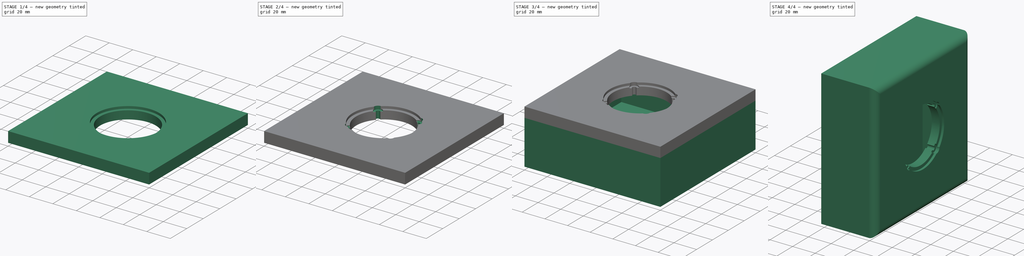
[diagram: build sequence overview — one tinted view per stage of 4, left to right]
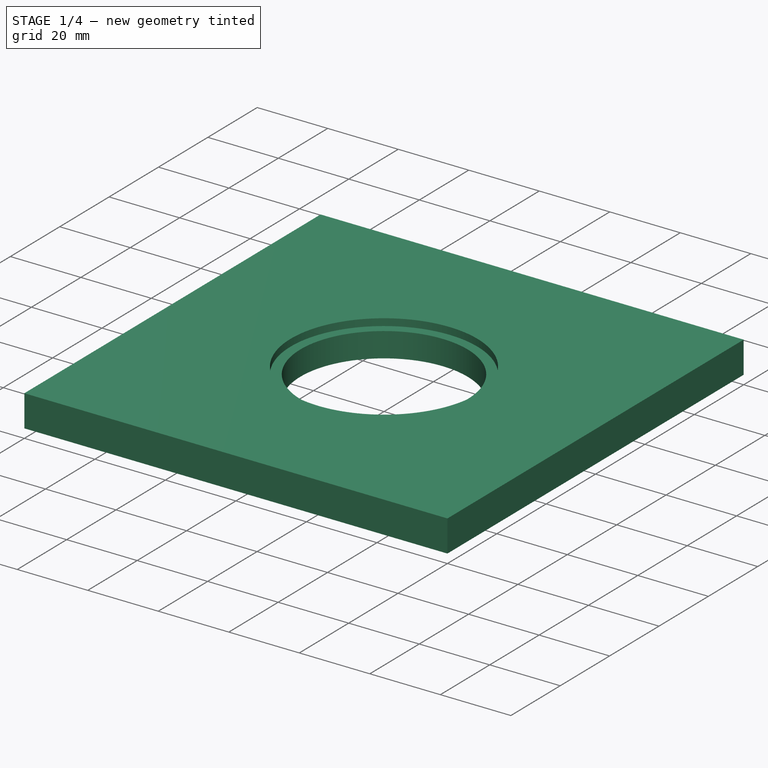
[diagram: stage 1 of 4 — iso view after this stage's code; geometry added in this stage tinted green]
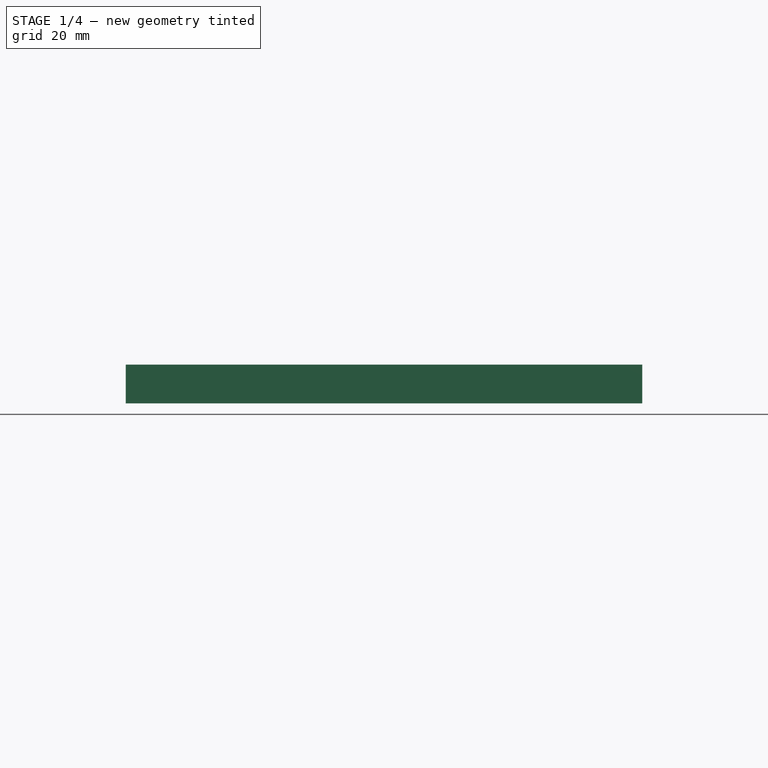
[diagram: stage 1 of 4 — front view after this stage's code; geometry added in this stage tinted green]
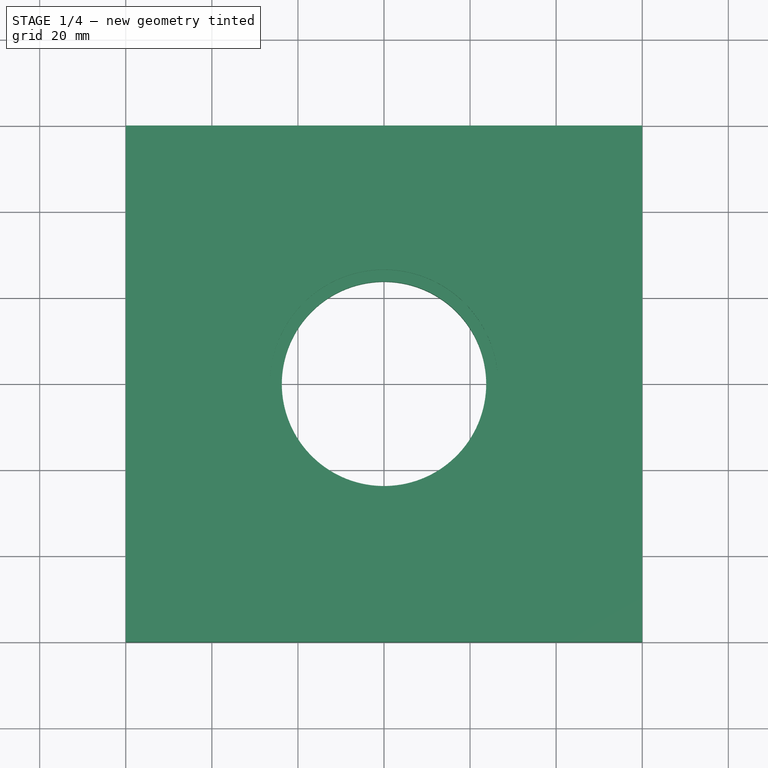
[diagram: stage 1 of 4 — top view after this stage's code; geometry added in this stage tinted green]
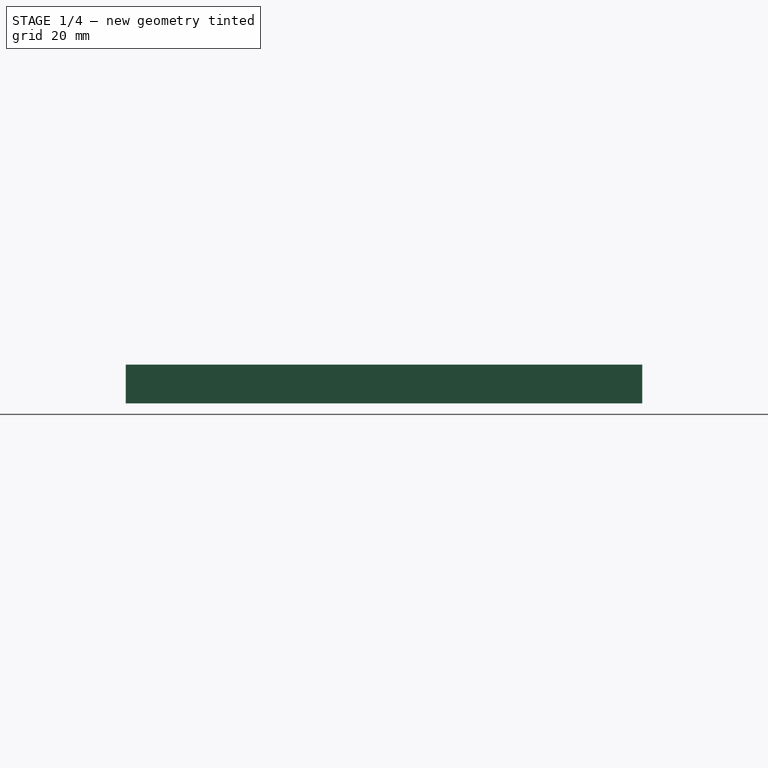
[diagram: stage 1 of 4 — right view after this stage's code; geometry added in this stage tinted green]
FCSTD DOCUMENT  (FreeCAD 0.21R33771 (Git))
Label: baffle3 - testpart
License: All rights reserved
LicenseURL: http://en.wikipedia.org/wiki/All_rights_reserved
objects: Sketcher::SketchObject×5, PartDesign::Pad×3, PartDesign::Hole×3, PartDesign::PolarPattern×2, PartDesign::AdditiveCylinder×1, PartDesign::Fillet×1, PartDesign::SubtractiveCylinder×1, PartDesign::Body×1
note: 26 computed .brp shape members not serialized (recipe doc carries the construction recipe); baked Part::Feature solids carry a one-line shape summary decoded from their .brp

FEATURE [Sketcher::SketchObject] Sketch  label="front panel outline"
  FullyConstrained = true
  MapMode = 5
  Placement = pos=(0,0,0) rot=(0,1,0;3.14159rad)
  Support = -> [XY_Plane]
  sketch-geometry (4):
    g0: LineSegment StartX=-60 StartY=120 StartZ=0 EndX=60 EndY=120 EndZ=0
    g1: LineSegment StartX=60 StartY=120 StartZ=0 EndX=60 EndY=0 EndZ=0
    g2: LineSegment StartX=60 StartY=0 StartZ=0 EndX=-60 EndY=0 EndZ=0
    g3: LineSegment StartX=-60 StartY=0 StartZ=0 EndX=-60 EndY=120 EndZ=0
  constraints (11):
    c: Coincident(g0,g1)
    c: Coincident(g1,g2)
    c: Coincident(g2,g3)
    c: Coincident(g3,g0)
    c: Horizontal(g0)
    c: Horizontal(g2)
    c: Vertical(g1)
    c: Vertical(g3)
    c: DistanceY(g3,g3) = 120
    c: DistanceX(g2,g2) = 120
    c: Symmetric(g2,g1,g-1)
FEATURE [PartDesign::Pad] Pad  label="front panel pad"
  Direction = (0,0,-1)
  Length = 9
  Length2 = 10
  Profile = -> Sketch
  ReferenceAxis = -> Sketch [N_Axis]
  Type = 0
FEATURE [Sketcher::SketchObject] Sketch003  label="bmr centre"
  AttachmentOffset = pos=(0,60,0) rot=(0,0,1;0rad)
  FullyConstrained = true
  MapMode = 5
  Placement = pos=(0,60,0) rot=(0,0,1;0rad)
  Support = -> [XY_Plane]
  sketch-geometry (1):
    g0: Circle CenterX=0 CenterY=0 CenterZ=0 NormalX=0 NormalY=0 NormalZ=1 AngleXU=0 Radius=20.75
  constraints (2):
    c: Coincident(g-1,g0)
    c: Diameter(g0) = 41.5
FEATURE [PartDesign::Hole] Hole002  label="bmr rebated hole"
  BaseFeature = -> Pad
  CustomThreadClearance = 0
  Depth = 25
  DepthType = 0
  Diameter = 47.5
  DrillForDepth = false
  DrillPoint = 1
  DrillPointAngle = 118
  HoleCutCountersinkAngle = 90
  HoleCutCustomValues = false
  HoleCutDepth = 2
  HoleCutDiameter = 53
  HoleCutType = 1
  ModelThread = false
  Profile = -> Sketch003
  Tapered = false
  TaperedAngle = 90
  ThreadClass = 0
  ThreadDepth = 25
  ThreadDepthType = 0
  ThreadDirection = 0
  ThreadFit = 0
  ThreadSize = 0
  ThreadType = 0
  Threaded = false
  UseCustomThreadClearance = false
FEATURE [Sketcher::SketchObject] Sketch004  label="bmr posts"
  AttachmentOffset = pos=(0,60,0) rot=(0,0,1;0rad)
  FullyConstrained = true
  MapMode = 5
  Placement = pos=(0,60,0) rot=(0,0,1;0rad)
  Support = -> [XY_Plane]
  sketch-geometry (1):
    g0: Circle CenterX=17 CenterY=17 CenterZ=0 NormalX=0 NormalY=0 NormalZ=1 AngleXU=0 Radius=6
  constraints (3):
    c: Diameter(g0) = 12
    c: DistanceX(g-1,g0) = 17
    c: DistanceY(g-1,g0) = 17
FEATURE [PartDesign::AdditiveCylinder] Cylinder  label="bmr support pillar"
  Angle = 360
  AttacherType = Attacher::AttachEngine3D
  AttachmentOffset = pos=(0,0,39) rot=(0,0,1;0rad)
  BaseFeature = -> Hole002
  FirstAngle = 0
  Height = 39
  MapMode = 11
  Placement = pos=(17,77,39) rot=(0,0,1;1.5708rad)
  Radius = 3.5
  SecondAngle = 0
  Support = -> [Sketch004]
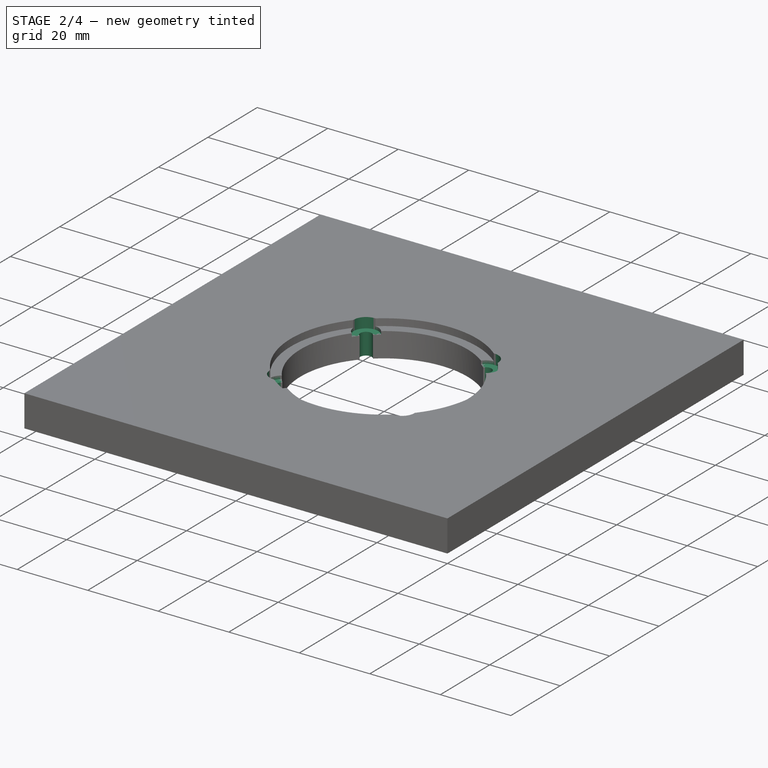
[diagram: stage 2 of 4 — iso view after this stage's code; geometry added in this stage tinted green]
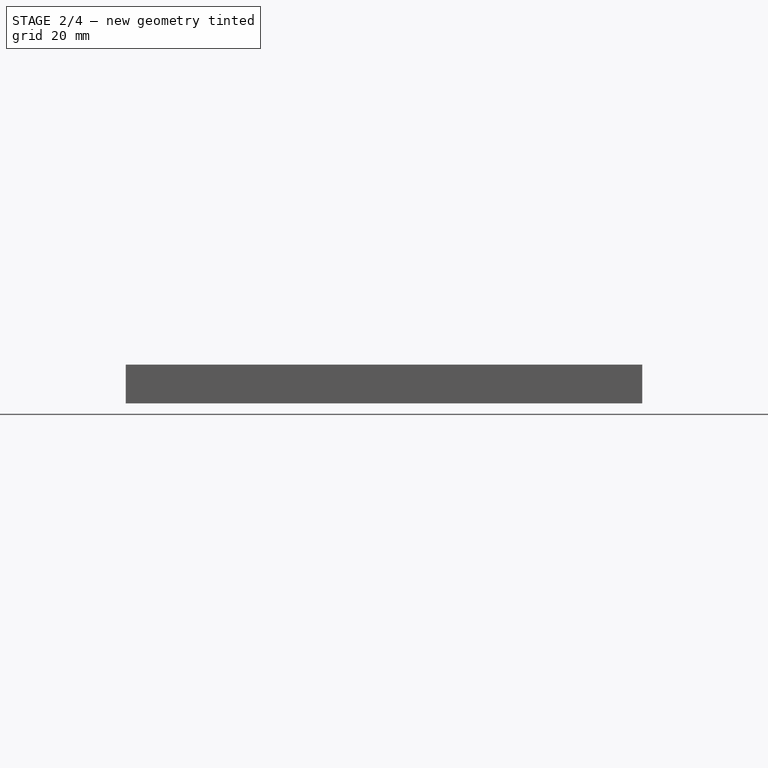
[diagram: stage 2 of 4 — front view after this stage's code; geometry added in this stage tinted green]
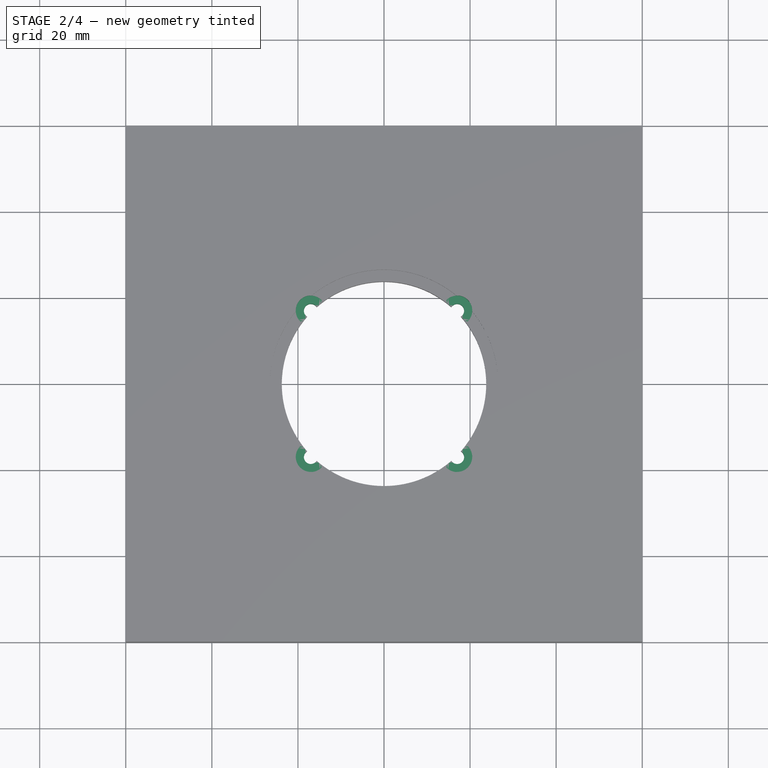
[diagram: stage 2 of 4 — top view after this stage's code; geometry added in this stage tinted green]
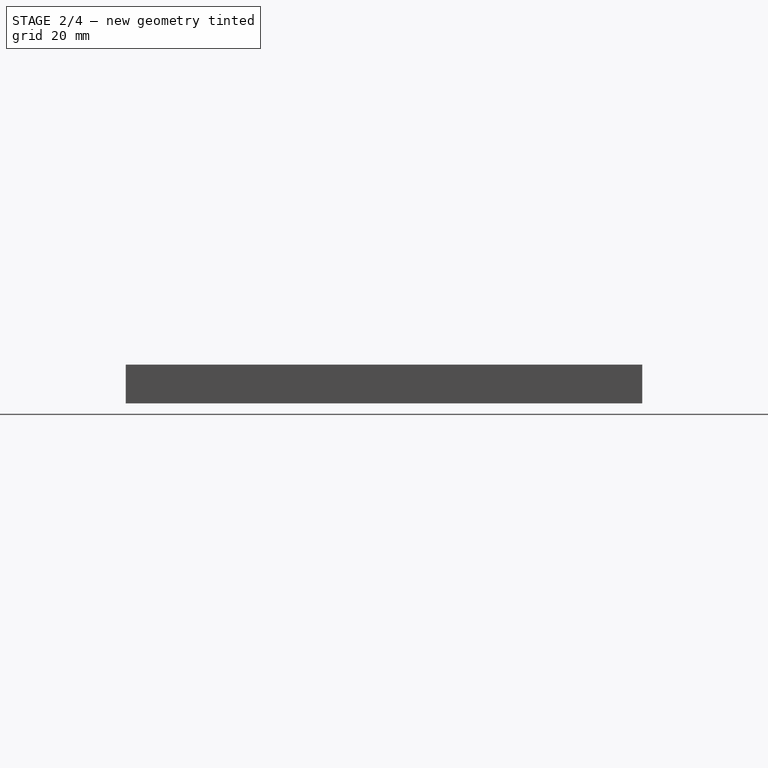
[diagram: stage 2 of 4 — right view after this stage's code; geometry added in this stage tinted green]
FEATURE [PartDesign::Hole] Hole003  label="bmr insert hole"
  BaseFeature = -> Cylinder
  CustomThreadClearance = 0
  Depth = 350.858
  DepthType = 1
  Diameter = 3.23
  DrillForDepth = false
  DrillPoint = 1
  DrillPointAngle = 118
  HoleCutCountersinkAngle = 90
  HoleCutCustomValues = false
  HoleCutDepth = 2.91
  HoleCutDiameter = 7
  HoleCutType = 1
  ModelThread = false
  Placement = pos=(17,77,39) rot=(0,0,1;1.5708rad)
  Profile = -> Sketch004
  Tapered = false
  TaperedAngle = 90
  ThreadClass = 0
  ThreadDepth = 350.858
  ThreadDepthType = 0
  ThreadDirection = 0
  ThreadFit = 0
  ThreadSize = 0
  ThreadType = 0
  Threaded = false
  UseCustomThreadClearance = false
FEATURE [PartDesign::PolarPattern] PolarPattern001  label="bmr support pillar pattern"
  Angle = 360
  Axis = -> Hole003 [Edge20]
  BaseFeature = -> Hole003
  Occurrences = 4
  Originals = -> [Cylinder]
  Placement = pos=(17,77,39) rot=(0,0,1;1.5708rad)
FEATURE [PartDesign::PolarPattern] PolarPattern002  label="bmr insert hole pattern"
  Angle = 360
  Axis = -> Sketch004 [N_Axis]
  BaseFeature = -> PolarPattern001
  Occurrences = 4
  Originals = -> [Hole003]
  Placement = pos=(17,77,39) rot=(0,0,1;1.5708rad)
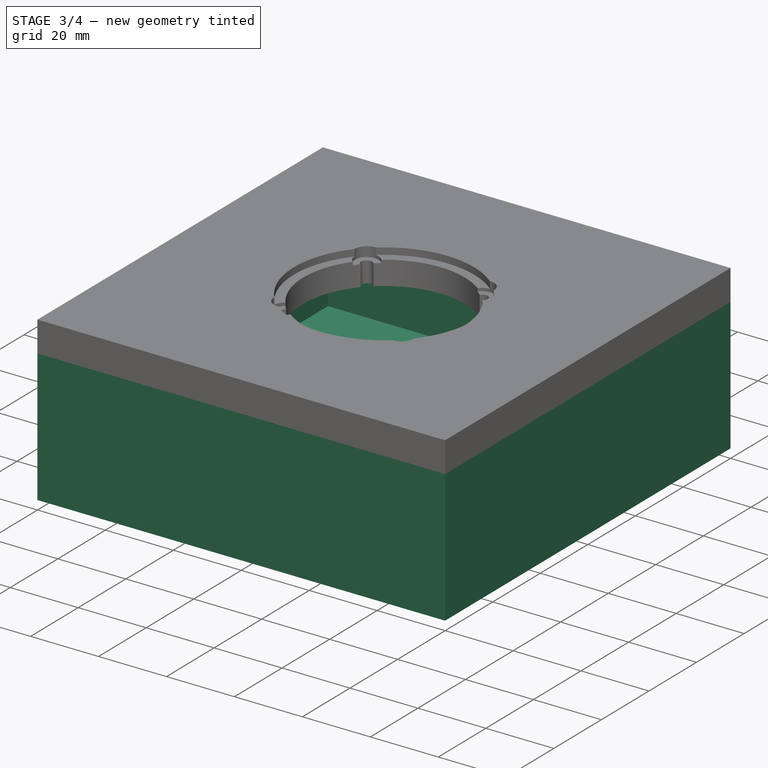
[diagram: stage 3 of 4 — iso view after this stage's code; geometry added in this stage tinted green]
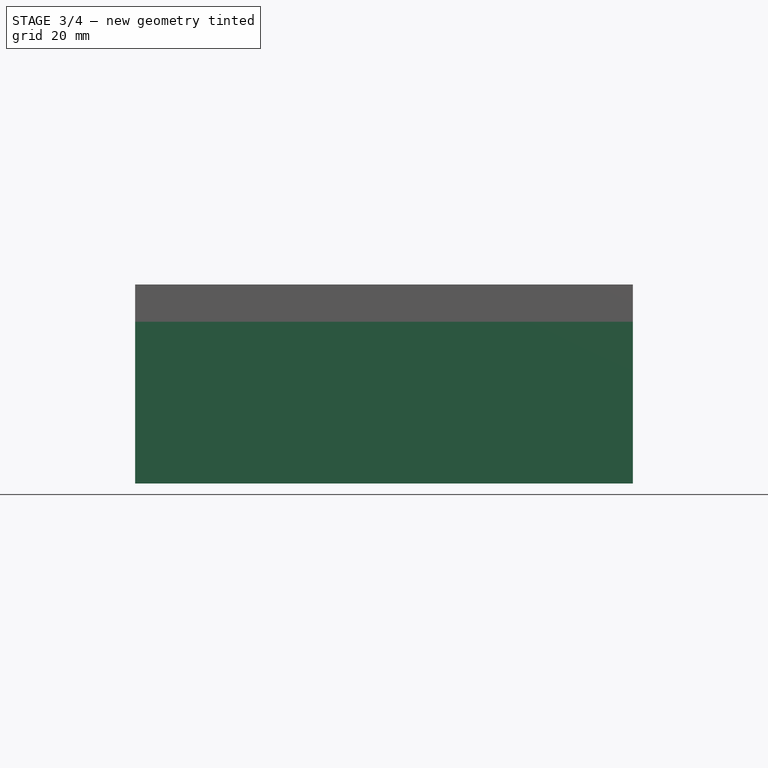
[diagram: stage 3 of 4 — front view after this stage's code; geometry added in this stage tinted green]
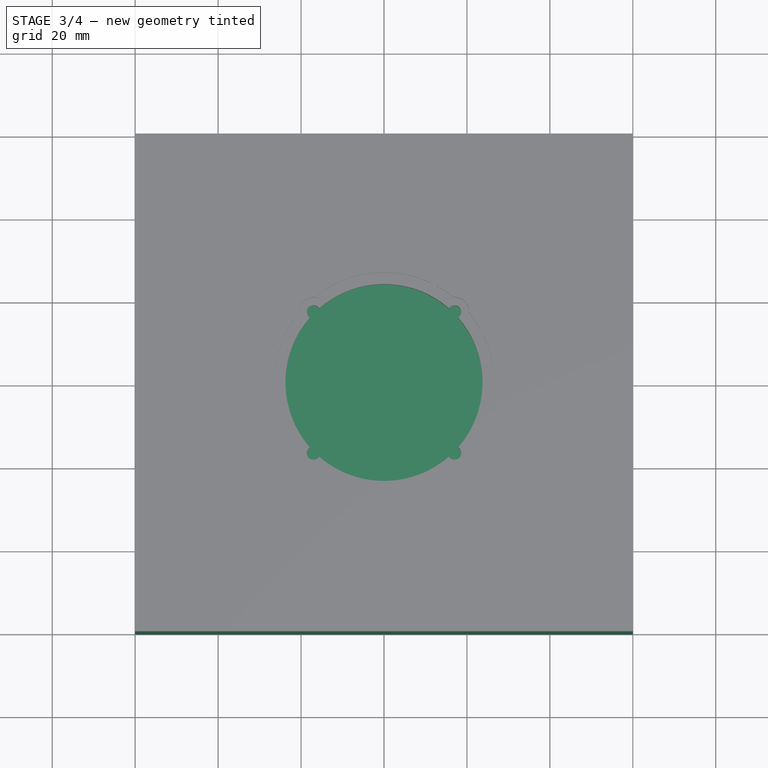
[diagram: stage 3 of 4 — top view after this stage's code; geometry added in this stage tinted green]
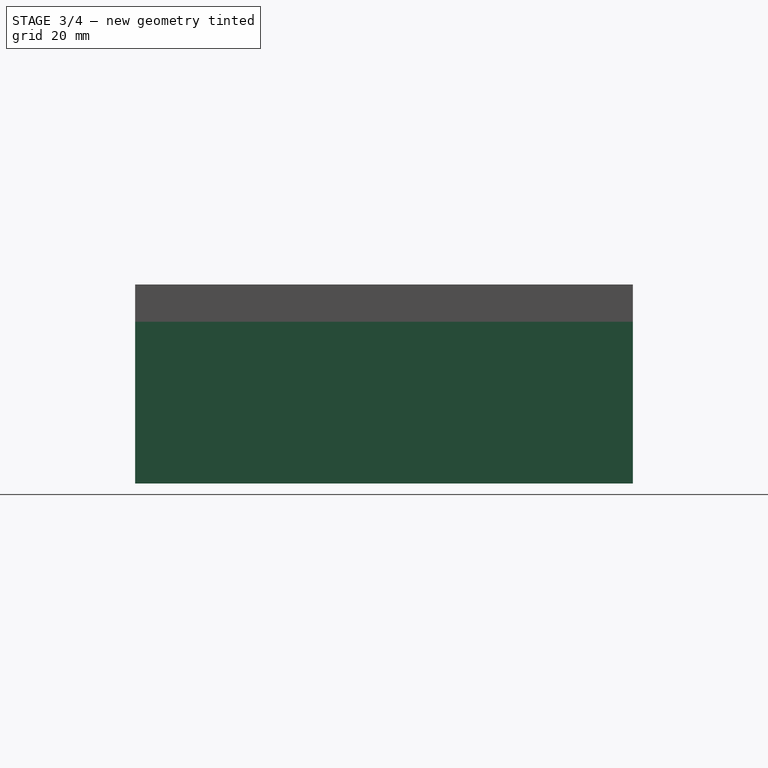
[diagram: stage 3 of 4 — right view after this stage's code; geometry added in this stage tinted green]
FEATURE [Sketcher::SketchObject] Sketch005  label="external walls"
  AttachmentOffset = pos=(0,0,9) rot=(0,0,1;0rad)
  FullyConstrained = true
  MapMode = 5
  Placement = pos=(0,0,-9) rot=(0,1,0;3.14159rad)
  Support = -> [XY_Plane]
  sketch-geometry (8):
    g0: LineSegment StartX=-60 StartY=120 StartZ=0 EndX=60 EndY=120 EndZ=0
    g1: LineSegment StartX=60 StartY=120 StartZ=0 EndX=60 EndY=0 EndZ=0
    g2: LineSegment StartX=60 StartY=0 StartZ=0 EndX=-60 EndY=0 EndZ=0
    g3: LineSegment StartX=-60 StartY=0 StartZ=0 EndX=-60 EndY=120 EndZ=0
    g4: LineSegment StartX=-55 StartY=115 StartZ=0 EndX=55 EndY=115 EndZ=0
    g5: LineSegment StartX=55 StartY=115 StartZ=0 EndX=55 EndY=5 EndZ=0
    g6: LineSegment StartX=55 StartY=5 StartZ=0 EndX=-55 EndY=5 EndZ=0
    g7: LineSegment StartX=-55 StartY=5 StartZ=0 EndX=-55 EndY=115 EndZ=0
  constraints (23):
    c: Coincident(g0,g1)
    c: Coincident(g1,g2)
    c: Coincident(g2,g3)
    c: Coincident(g3,g0)
    c: Horizontal(g0)
    c: Horizontal(g2)
    c: Vertical(g1)
    c: Vertical(g3)
    c: DistanceY(g3,g3) = 120
    c: DistanceX(g2,g2) = 120
    c: Symmetric(g2,g1,g-1)
    c: Coincident(g4,g5)
    c: Coincident(g5,g6)
    c: Coincident(g6,g7)
    c: Coincident(g7,g4)
    c: Horizontal(g4)
    c: Horizontal(g6)
    c: Vertical(g5)
    c: Vertical(g7)
    c: DistanceY(g7,g7) = 110
    c: DistanceX(g4,g4) = 110
    c: Symmetric(g4,g4,g-2)
    c: Distance(g6,g2) = 5
FEATURE [PartDesign::Pad] Pad001  label="external walls pad"
  BaseFeature = -> PolarPattern002
  Direction = (0,0,-1)
  Length = 30
  Length2 = 10
  Placement = pos=(17,77,39) rot=(0,0,1;1.5708rad)
  Profile = -> Sketch005
  ReferenceAxis = -> Sketch005 [N_Axis]
  Type = 0
FEATURE [Sketcher::SketchObject] Sketch008  label="back panel outline"
  AttachmentOffset = pos=(0,0,39) rot=(0,0,1;0rad)
  FullyConstrained = true
  MapMode = 5
  Placement = pos=(0,0,-39) rot=(0,1,0;3.14159rad)
  Support = -> [XY_Plane]
  sketch-geometry (4):
    g0: LineSegment StartX=-60 StartY=120 StartZ=0 EndX=60 EndY=120 EndZ=0
    g1: LineSegment StartX=60 StartY=120 StartZ=0 EndX=60 EndY=0 EndZ=0
    g2: LineSegment StartX=60 StartY=0 StartZ=0 EndX=-60 EndY=0 EndZ=0
    g3: LineSegment StartX=-60 StartY=0 StartZ=0 EndX=-60 EndY=120 EndZ=0
  constraints (11):
    c: Coincident(g0,g1)
    c: Coincident(g1,g2)
    c: Coincident(g2,g3)
    c: Coincident(g3,g0)
    c: Horizontal(g0)
    c: Horizontal(g2)
    c: Vertical(g1)
    c: Vertical(g3)
    c: DistanceY(g3,g3) = 120
    c: DistanceX(g2,g2) = 120
    c: Symmetric(g2,g1,g-1)
FEATURE [PartDesign::Pad] Pad002
  BaseFeature = -> Pad001
  Direction = (0,0,-1)
  Length = 9
  Length2 = 10
  Placement = pos=(17,77,39) rot=(0,0,1;1.5708rad)
  Profile = -> Sketch008
  ReferenceAxis = -> Sketch008 [N_Axis]
  Type = 0
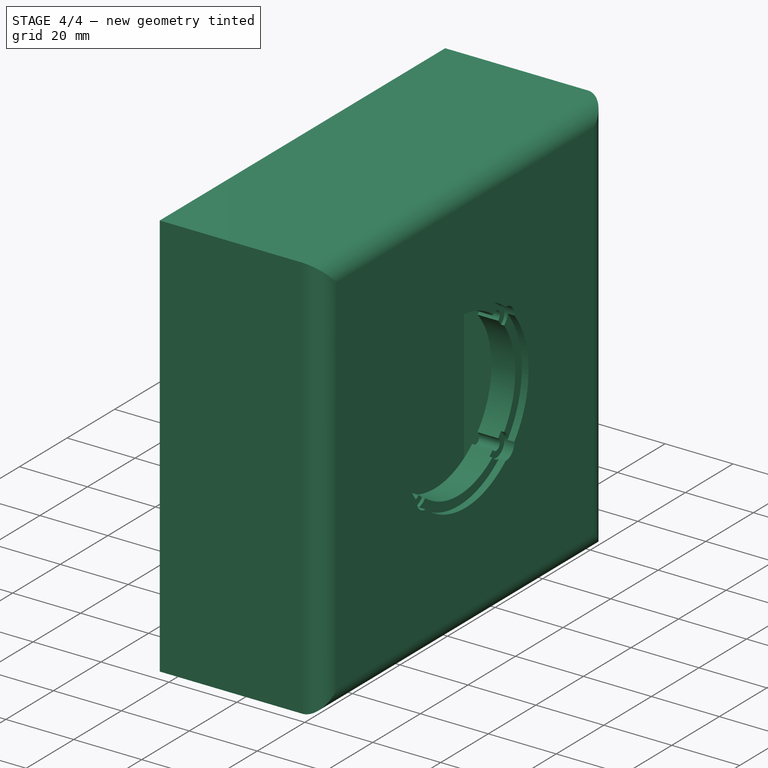
[diagram: stage 4 of 4 — iso view after this stage's code; geometry added in this stage tinted green]
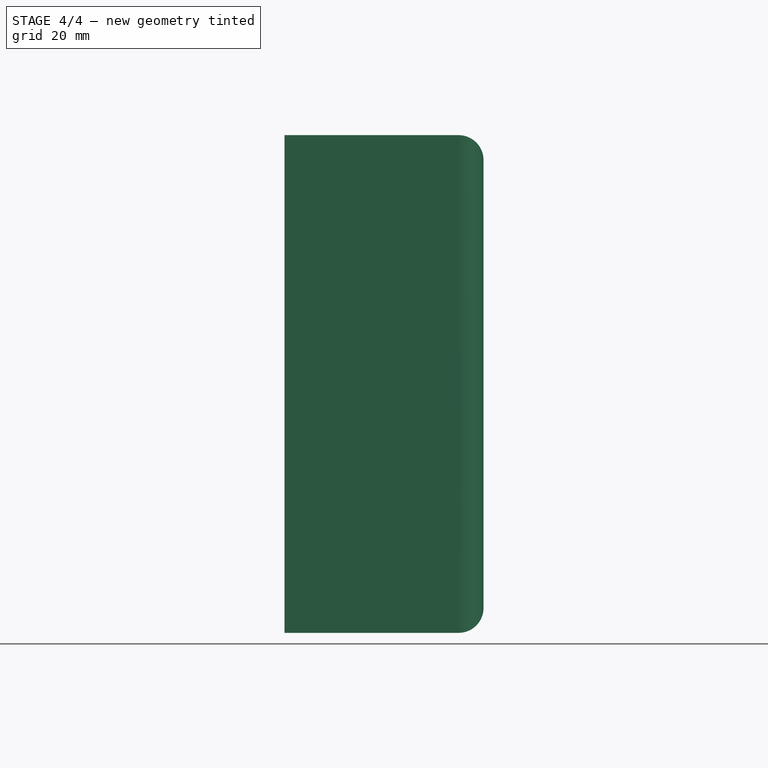
[diagram: stage 4 of 4 — front view after this stage's code; geometry added in this stage tinted green]
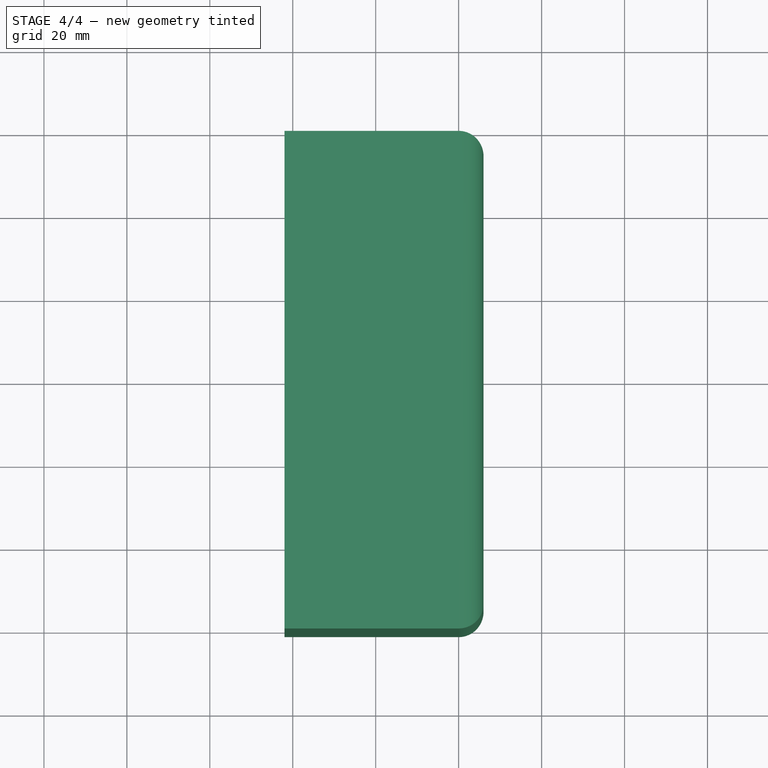
[diagram: stage 4 of 4 — top view after this stage's code; geometry added in this stage tinted green]
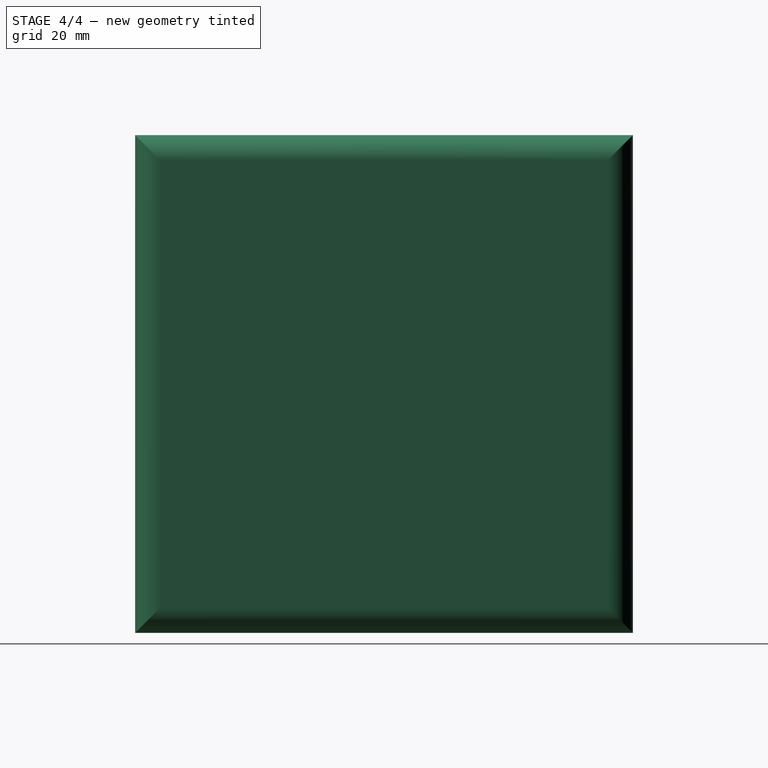
[diagram: stage 4 of 4 — right view after this stage's code; geometry added in this stage tinted green]
FEATURE [PartDesign::Fillet] Fillet
  Base = -> Pad002 [Edge3,Edge6,Edge11,Edge9]
  BaseFeature = -> Pad002
  Placement = pos=(17,77,39) rot=(0,0,1;1.5708rad)
  Radius = 6
  SupportTransform = false
  UseAllEdges = false
FEATURE [PartDesign::SubtractiveCylinder] Cylinder001
  Angle = 360
  AttacherType = Attacher::AttachEngine3D
  AttachmentOffset = pos=(-20,15,-9) rot=(0,0,1;0rad)
  BaseFeature = -> Fillet
  FirstAngle = 0
  Height = 10
  MapMode = 5
  Placement = pos=(-3,9,54) rot=(1,0,0;1.5708rad)
  Radius = 5.5
  SecondAngle = 0
  Support = -> [Fillet]
FEATURE [PartDesign::Hole] Hole
  BaseFeature = -> Cylinder001
  CustomThreadClearance = 0
  Depth = 15
  DepthType = 0
  Diameter = 42
  DrillForDepth = false
  DrillPoint = 1
  DrillPointAngle = 118
  HoleCutCountersinkAngle = 90
  HoleCutCustomValues = false
  HoleCutDepth = 0
  HoleCutDiameter = 43.1
  HoleCutType = 0
  ModelThread = false
  Placement = pos=(-3,9,54) rot=(1,0,0;1.5708rad)
  Profile = -> Sketch003
  Tapered = false
  TaperedAngle = 90
  ThreadClass = 0
  ThreadDepth = 15
  ThreadDepthType = 0
  ThreadDirection = 0
  ThreadFit = 0
  ThreadSize = 0
  ThreadType = 0
  Threaded = false
  UseCustomThreadClearance = false
FEATURE [PartDesign::Body] Body
  Group = -> [Sketch,Pad,Sketch003,Hole002,Sketch004,Cylinder,Hole003,PolarPattern001,PolarPattern002,Sketch005,Pad001,Sketch008,Pad002,Fillet,Cylinder001,Hole]
  Origin = -> Origin
  Tip = -> Hole003
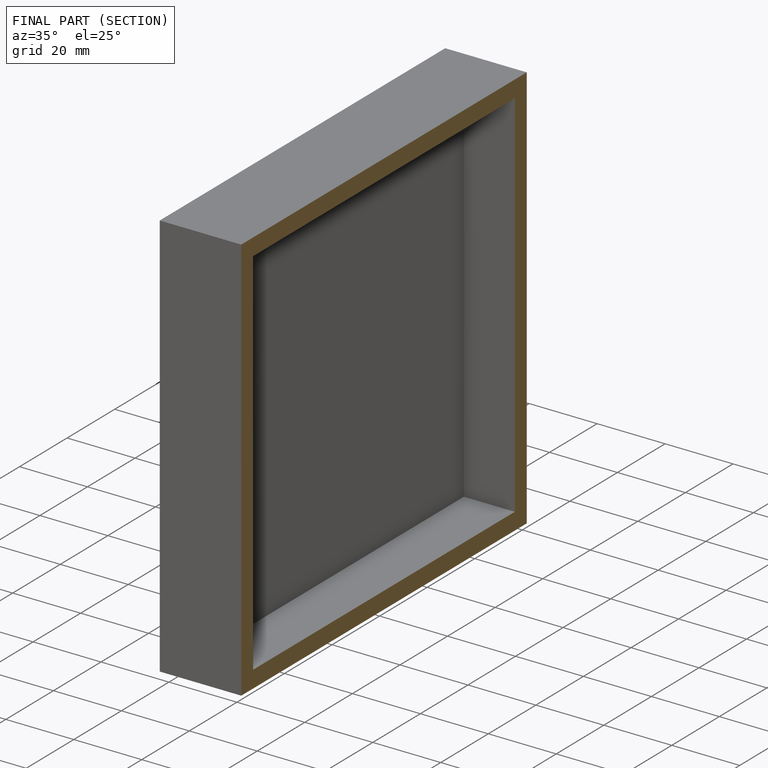
[diagram: finished part — half-section view (interior)]
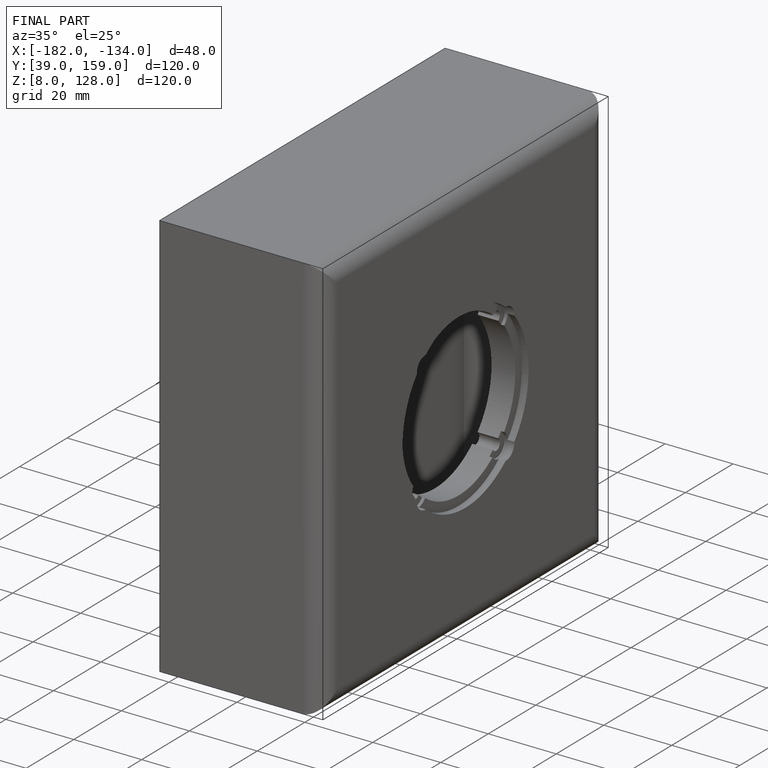
[diagram: finished part — iso view with bounding-box wireframe]
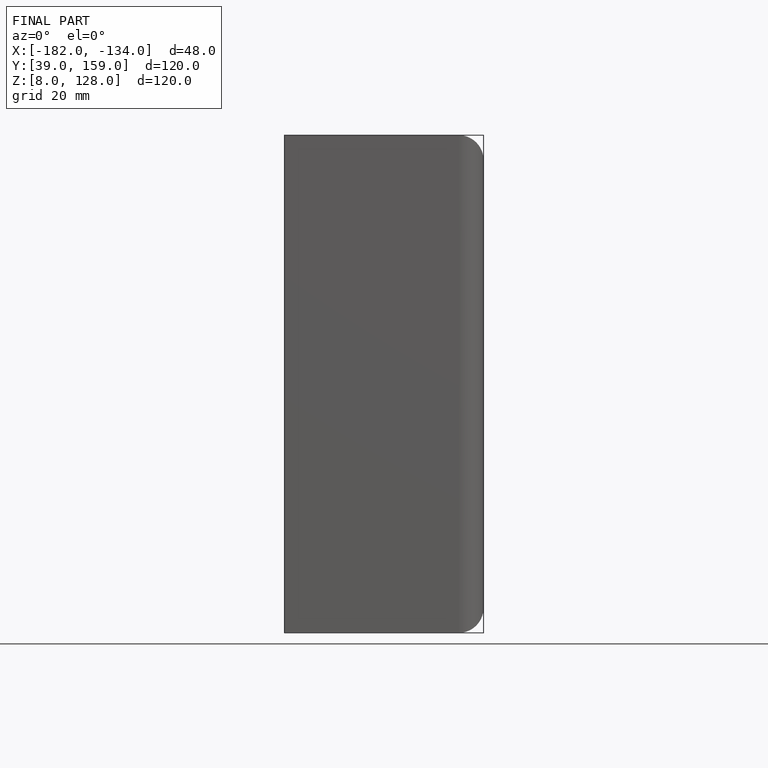
[diagram: finished part — front view with bounding-box wireframe]
